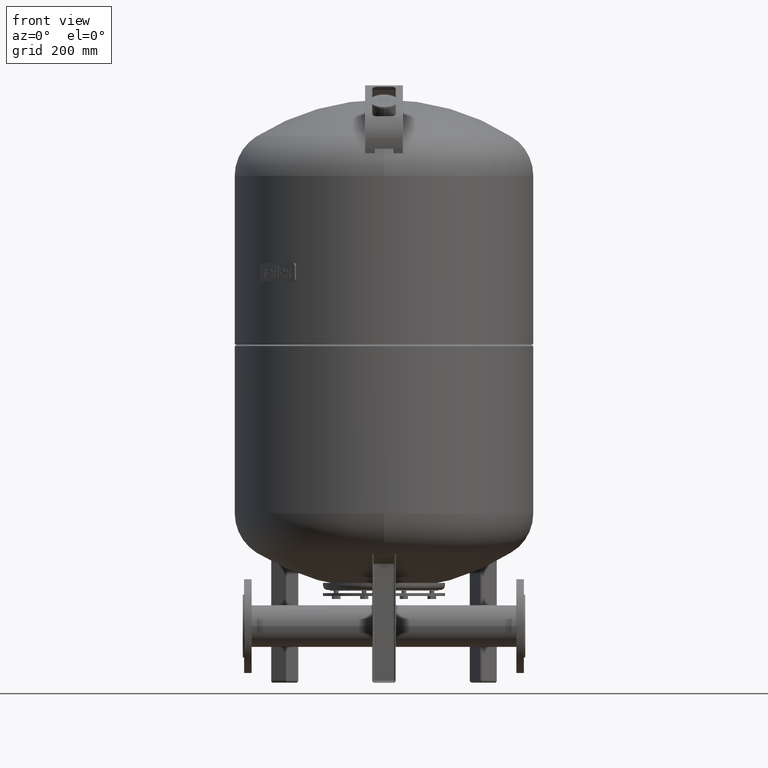
[diagram: clean part render]
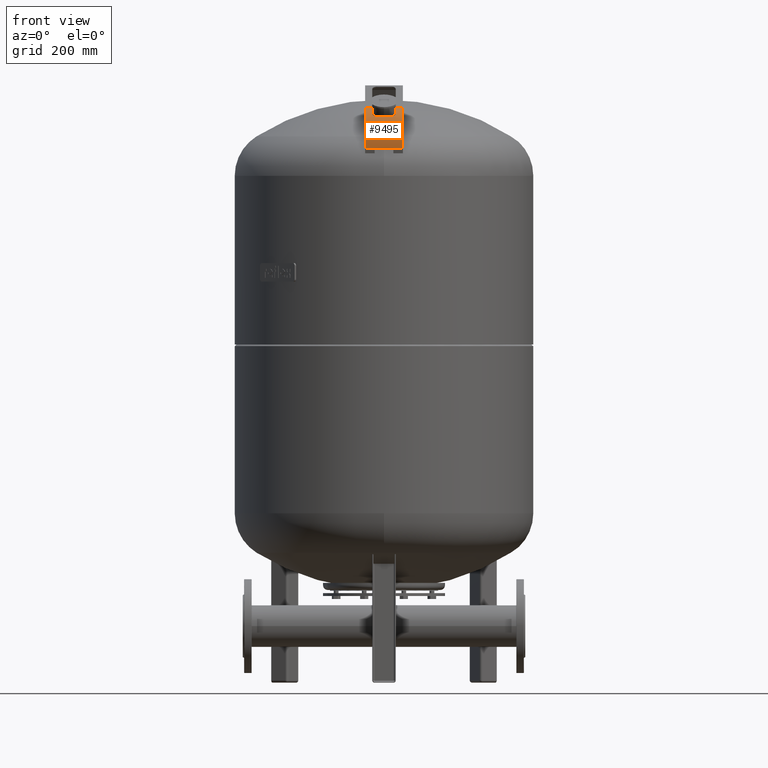
[diagram: same view with one face highlighted and labeled with its STEP entity id]
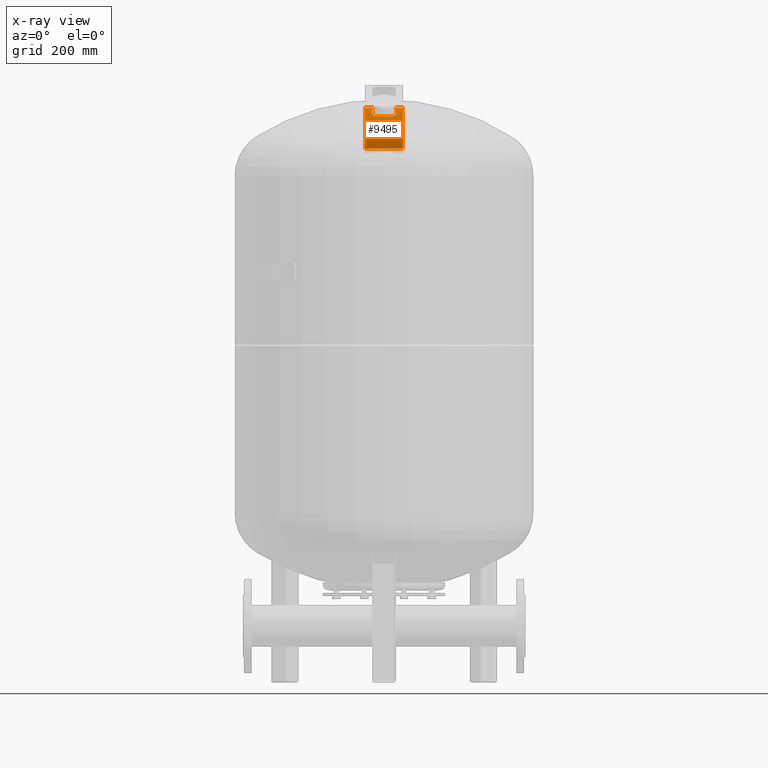
[diagram: x-ray of the same camera — body ghosted, the highlighted face saturated]
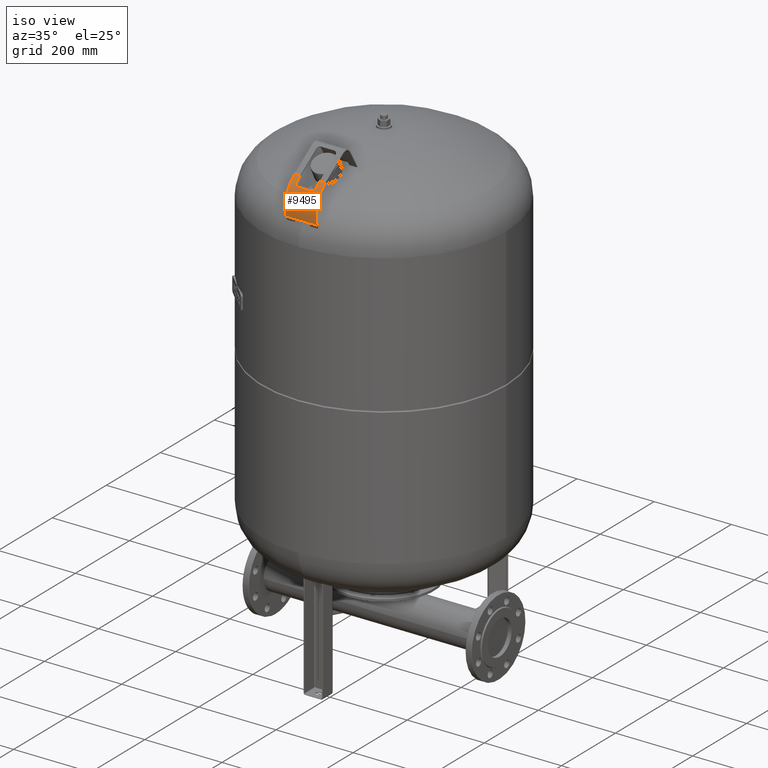
[diagram: same view with one face highlighted and labeled with its STEP entity id]
A machine part, front view. The second image highlights one B-rep face of the part: STEP entity #9495.
The next image is the same camera in x-ray: the body ghosted, the highlighted face saturated — about 0% of this face is hidden behind the body in this view.
A second angle (iso view) of the same face is appended — the face is thin or edge-on in the first view.
In plain terms, the highlighted cylindrical surface (partial cylindrical patch) has radius 79 mm, axis along (1, -0, -0).
Its self-contained STEP definition (entity closure, byte-faithful):
#8803=CARTESIAN_POINT('',(19.999999999999876,-305.403670454327370,1133.857654966532200));
#8804=VERTEX_POINT('',#8803);
#8811=CARTESIAN_POINT('',(-20.000000000000124,-305.403670454327370,1133.857654966532200));
#8812=VERTEX_POINT('',#8811);
#8813=CARTESIAN_POINT('',(-20.000000000000124,-305.403670454327370,1133.857654966532200));
#8814=DIRECTION('',(1.0,0.0,0.0));
#8815=VECTOR('',#8814,40.0);
#8816=LINE('',#8813,#8815);
#8817=EDGE_CURVE('',#8812,#8804,#8816,.T.);
#9023=CARTESIAN_POINT('',(-25.000000000000082,-287.628775249873290,1208.970392324738400));
#9024=VERTEX_POINT('',#9023);
#9031=CARTESIAN_POINT('',(-17.000000000000110,-292.800837062069720,1202.721719893910200));
#9032=VERTEX_POINT('',#9031);
#9033=CARTESIAN_POINT('',(-17.000000000000110,-292.800837062069660,1202.721719893910200));
#9034=CARTESIAN_POINT('',(-18.001098037693502,-292.800869305556940,1202.721676591772800));
#9035=CARTESIAN_POINT('',(-18.994389289908153,-292.687482082367180,1202.875035729171500));
#9036=CARTESIAN_POINT('',(-20.846478049911806,-292.242057505271820,1203.464415106045900));
#9037=CARTESIAN_POINT('',(-21.688261161398533,-291.917693671465090,1203.889852493048700));
#9038=CARTESIAN_POINT('',(-23.154927435061847,-291.072088711897270,1204.963530079599000));
#9039=CARTESIAN_POINT('',(-23.760069219120382,-290.553345320865160,1205.607175378011600));
#9040=CARTESIAN_POINT('',(-24.462487950084636,-289.609194522094410,1206.732799712332500));
#9041=CARTESIAN_POINT('',(-24.663795012076321,-289.231326662748240,1207.174154393710500));
#9042=CARTESIAN_POINT('',(-24.932595877861196,-288.445384679723990,1208.070499610578700));
#9043=CARTESIAN_POINT('',(-25.000029814050379,-288.040049825339570,1208.522468567337900));
#9044=CARTESIAN_POINT('',(-25.000000000000082,-287.628775249873290,1208.970392324738400));
#9045=B_SPLINE_CURVE_WITH_KNOTS('',3,(#9033,#9034,#9035,#9036,#9037,#9038,#9039,#9040,#9041,#9042,#9043,#9044),.UNSPECIFIED.,.F.,.U.,(4,2,2,2,2,4),(0.0,0.300329411744744,0.596044484812661,0.899555431535718,1.082712991981320,1.264749568333981),.UNSPECIFIED.);
#9046=EDGE_CURVE('',#9032,#9024,#9045,.T.);
#9071=CARTESIAN_POINT('',(16.999999999999883,-292.800837062069660,1202.721719893910200));
#9072=VERTEX_POINT('',#9071);
#9073=CARTESIAN_POINT('',(16.999999999999883,-292.800837062069660,1202.721719893910200));
#9074=DIRECTION('',(-1.0,0.0,0.0));
#9075=VECTOR('',#9074,33.999999999999993);
#9076=LINE('',#9073,#9075);
#9077=EDGE_CURVE('',#9072,#9032,#9076,.T.);
#9282=CARTESIAN_POINT('',(24.999999999999890,-287.628775249873290,1208.970392324738400));
#9283=VERTEX_POINT('',#9282);
#9284=CARTESIAN_POINT('',(24.999999999999847,-287.628775249873290,1208.970392324738400));
#9285=CARTESIAN_POINT('',(25.000052143342824,-288.348074742906250,1208.186995171509600));
#9286=CARTESIAN_POINT('',(24.793327339327575,-289.046874103223440,1207.392926815552100));
#9287=CARTESIAN_POINT('',(23.980301755713096,-290.333728665748990,1205.875717760449300));
#9288=CARTESIAN_POINT('',(23.375306670411753,-290.908492143505500,1205.167924740867400));
#9289=CARTESIAN_POINT('',(21.900263560729414,-291.821341864059150,1204.014558492114700));
#9290=CARTESIAN_POINT('',(21.067202024343008,-292.166450374399180,1203.563590910460300));
#9291=CARTESIAN_POINT('',(19.662136493641427,-292.535166687331750,1203.076900106761500));
#9292=CARTESIAN_POINT('',(19.154013798091558,-292.632620193142430,1202.946921883830600));
#9293=CARTESIAN_POINT('',(18.095566499509481,-292.766747374543970,1202.767603989651000));
#9294=CARTESIAN_POINT('',(17.548063254247989,-292.800854714157650,1202.721696187630400));
#9295=CARTESIAN_POINT('',(16.999999999999883,-292.800837062069660,1202.721719893910200));
#9296=B_SPLINE_CURVE_WITH_KNOTS('',3,(#9284,#9285,#9286,#9287,#9288,#9289,#9290,#9291,#9292,#9293,#9294,#9295),.UNSPECIFIED.,.F.,.U.,(4,2,2,2,2,4),(0.0,0.319059959376750,0.643429384093297,0.942865666803827,1.102285567286538,1.266952028297452),.UNSPECIFIED.);
#9297=EDGE_CURVE('',#9283,#9072,#9296,.T.);
#9402=CARTESIAN_POINT('',(-9.448485E-014,-229.437479199736460,1155.540315925716600));
#9403=DIRECTION('',(1.0,-3.863744E-016,-2.268409E-017));
#9404=DIRECTION('',(-1.984131E-016,-0.562083377852132,0.827080574274561));
#9405=AXIS2_PLACEMENT_3D('',#9402,#9403,#9404);
#9406=CYLINDRICAL_SURFACE('',#9405,79.0);
#9407=CARTESIAN_POINT('',(24.999999999999890,-273.842066050054880,1220.879681293406700));
#9408=VERTEX_POINT('',#9407);
#9409=CARTESIAN_POINT('',(24.999999999999904,-229.437479199736460,1155.540315925716600));
#9410=DIRECTION('',(1.0,-1.115247E-016,1.641036E-016));
#9411=DIRECTION('',(-1.984131E-016,-0.562083377852132,0.827080574274561));
#9412=AXIS2_PLACEMENT_3D('',#9409,#9410,#9411);
#9413=CIRCLE('',#9412,79.0);
#9414=EDGE_CURVE('',#9408,#9283,#9413,.T.);
#9415=ORIENTED_EDGE('',*,*,#9414,.T.);
#9416=ORIENTED_EDGE('',*,*,#9297,.T.);
#9417=ORIENTED_EDGE('',*,*,#9077,.T.);
#9418=ORIENTED_EDGE('',*,*,#9046,.T.);
#9419=CARTESIAN_POINT('',(-25.000000000000110,-273.842066050054880,1220.879681293406700));
#9420=VERTEX_POINT('',#9419);
#9421=CARTESIAN_POINT('',(-25.000000000000096,-229.437479199736460,1155.540315925716600));
#9422=DIRECTION('',(-1.0,1.115247E-016,-1.641036E-016));
#9423=DIRECTION('',(-1.984131E-016,-0.562083377852132,0.827080574274561));
#9424=AXIS2_PLACEMENT_3D('',#9421,#9422,#9423);
#9425=CIRCLE('',#9424,79.0);
#9426=EDGE_CURVE('',#9024,#9420,#9425,.T.);
#9427=ORIENTED_EDGE('',*,*,#9426,.T.);
#9428=CARTESIAN_POINT('',(-40.000000000000107,-273.842066050054880,1220.879681293406700));
#9429=VERTEX_POINT('',#9428);
#9430=CARTESIAN_POINT('',(-40.000000000000107,-273.842066050054880,1220.879681293406700));
#9431=DIRECTION('',(1.0,0.0,0.0));
#9432=VECTOR('',#9431,14.999999999999996);
#9433=LINE('',#9430,#9432);
#9434=EDGE_CURVE('',#9429,#9420,#9433,.T.);
#9435=ORIENTED_EDGE('',*,*,#9434,.F.);
#9436=CARTESIAN_POINT('',(-40.000000000000128,-305.300680368214960,1133.500018548616900));
#9437=VERTEX_POINT('',#9436);
#9438=CARTESIAN_POINT('',(-40.000000000000092,-229.437479199736460,1155.540315925716600));
#9439=DIRECTION('',(1.0,-1.115247E-016,1.641036E-016));
#9440=DIRECTION('',(-1.984131E-016,-0.562083377852132,0.827080574274561));
#9441=AXIS2_PLACEMENT_3D('',#9438,#9439,#9440);
#9442=CIRCLE('',#9441,79.0);
#9443=EDGE_CURVE('',#9429,#9437,#9442,.T.);
#9444=ORIENTED_EDGE('',*,*,#9443,.T.);
#9445=CARTESIAN_POINT('',(-20.000000000000124,-305.300680368214960,1133.500018548616900));
#9446=VERTEX_POINT('',#9445);
#9447=CARTESIAN_POINT('',(-20.000000000000124,-305.300680368214960,1133.500018548616900));
#9448=DIRECTION('',(-1.0,0.0,0.0));
#9449=VECTOR('',#9448,20.000000000000004);
#9450=LINE('',#9447,#9449);
#9451=EDGE_CURVE('',#9446,#9437,#9450,.T.);
#9452=ORIENTED_EDGE('',*,*,#9451,.F.);
#9453=CARTESIAN_POINT('',(-20.000000000000096,-229.437479199736460,1155.540315925716600));
#9454=DIRECTION('',(-1.0,1.115247E-016,-1.641036E-016));
#9455=DIRECTION('',(-1.984131E-016,-0.562083377852132,0.827080574274561));
#9456=AXIS2_PLACEMENT_3D('',#9453,#9454,#9455);
#9457=CIRCLE('',#9456,79.0);
#9458=EDGE_CURVE('',#9446,#8812,#9457,.T.);
#9459=ORIENTED_EDGE('',*,*,#9458,.T.);
#9460=ORIENTED_EDGE('',*,*,#8817,.T.);
#9461=CARTESIAN_POINT('',(19.999999999999876,-305.300680368214960,1133.500018548616900));
#9462=VERTEX_POINT('',#9461);
#9463=CARTESIAN_POINT('',(19.999999999999911,-229.437479199736460,1155.540315925716600));
#9464=DIRECTION('',(1.0,-1.115247E-016,1.641036E-016));
#9465=DIRECTION('',(-1.984131E-016,-0.562083377852132,0.827080574274561));
#9466=AXIS2_PLACEMENT_3D('',#9463,#9464,#9465);
#9467=CIRCLE('',#9466,79.0);
#9468=EDGE_CURVE('',#8804,#9462,#9467,.T.);
#9469=ORIENTED_EDGE('',*,*,#9468,.T.);
#9470=CARTESIAN_POINT('',(39.999999999999872,-305.300680368214960,1133.500018548616900));
#9471=VERTEX_POINT('',#9470);
#9472=CARTESIAN_POINT('',(39.999999999999872,-305.300680368214960,1133.500018548616900));
#9473=DIRECTION('',(-1.0,0.0,0.0));
#9474=VECTOR('',#9473,19.999999999999996);
#9475=LINE('',#9472,#9474);
#9476=EDGE_CURVE('',#9471,#9462,#9475,.T.);
#9477=ORIENTED_EDGE('',*,*,#9476,.F.);
#9478=CARTESIAN_POINT('',(39.999999999999886,-273.842066050054880,1220.879681293406700));
#9479=VERTEX_POINT('',#9478);
#9480=CARTESIAN_POINT('',(39.999999999999893,-229.437479199736460,1155.540315925716600));
#9481=DIRECTION('',(-1.0,1.115247E-016,-1.641036E-016));
#9482=DIRECTION('',(-1.984131E-016,-0.562083377852132,0.827080574274561));
#9483=AXIS2_PLACEMENT_3D('',#9480,#9481,#9482);
#9484=CIRCLE('',#9483,79.0);
#9485=EDGE_CURVE('',#9471,#9479,#9484,.T.);
#9486=ORIENTED_EDGE('',*,*,#9485,.T.);
#9487=CARTESIAN_POINT('',(24.999999999999890,-273.842066050054880,1220.879681293406700));
#9488=DIRECTION('',(1.0,0.0,0.0));
#9489=VECTOR('',#9488,14.999999999999996);
#9490=LINE('',#9487,#9489);
#9491=EDGE_CURVE('',#9408,#9479,#9490,.T.);
#9492=ORIENTED_EDGE('',*,*,#9491,.F.);
#9493=EDGE_LOOP('',(#9415,#9416,#9417,#9418,#9427,#9435,#9444,#9452,#9459,#9460,#9469,#9477,#9486,#9492));
#9494=FACE_OUTER_BOUND('',#9493,.T.);
#9495=ADVANCED_FACE('',(#9494),#9406,.T.);